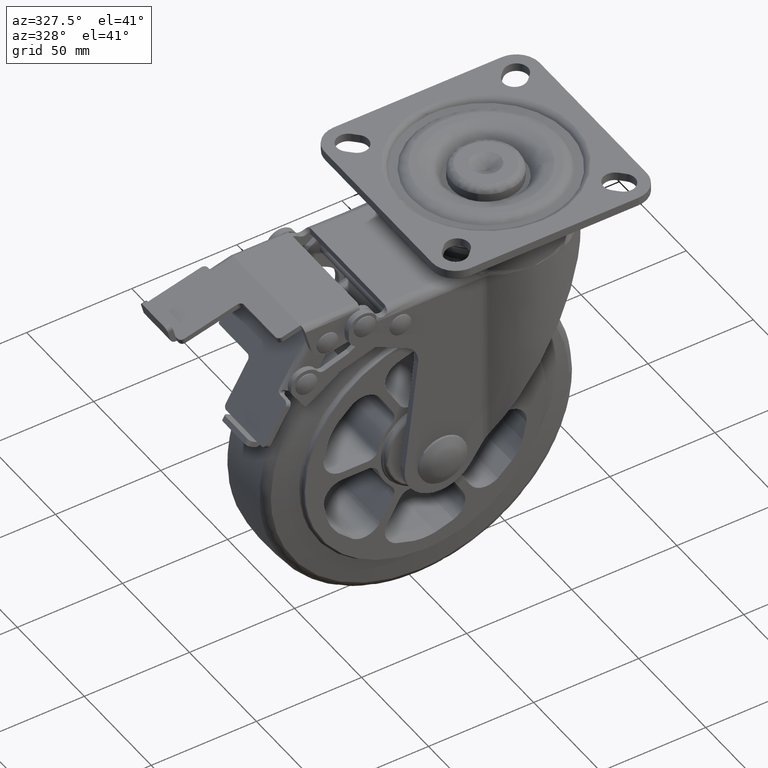
[diagram: clean part render]
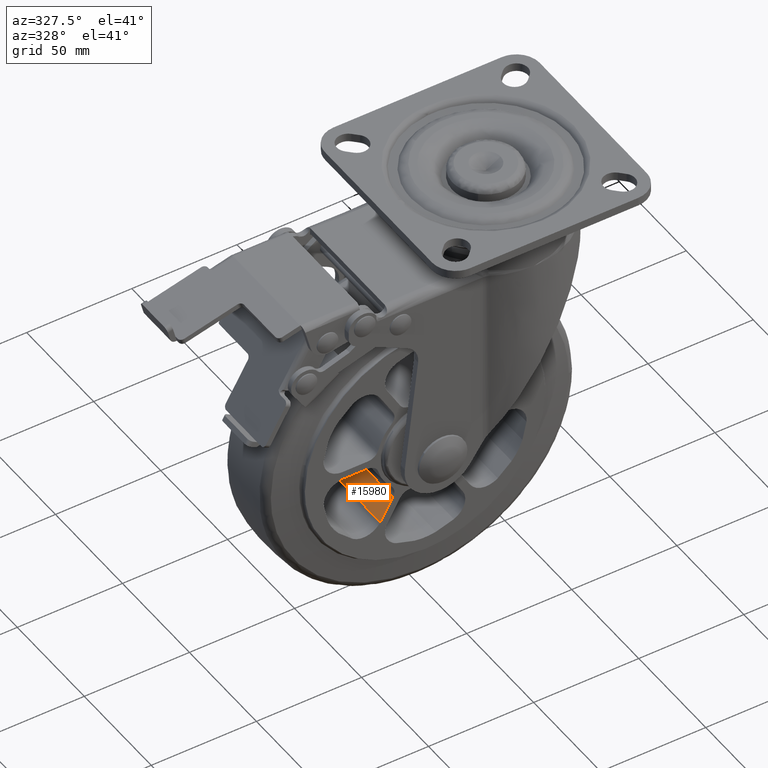
[diagram: same view with one face highlighted and labeled with its STEP entity id]
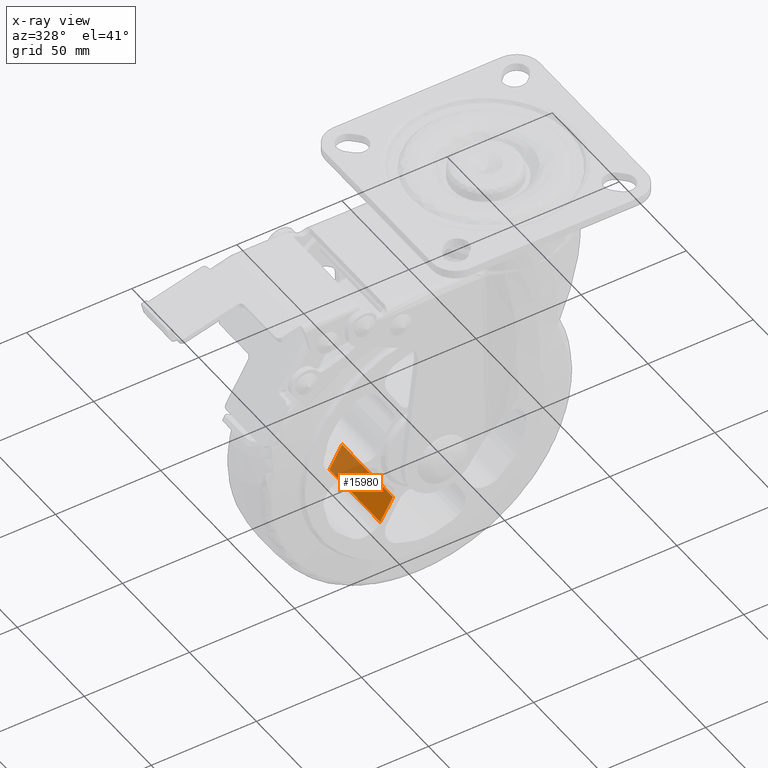
[diagram: x-ray of the same camera — body ghosted, the highlighted face saturated]
A machine part, auxiliary view. The second image highlights one B-rep face of the part: STEP entity #15980.
The next image is the same camera in x-ray: the body ghosted, the highlighted face saturated — about 34% of this face is hidden behind the body in this view.
In plain terms, the highlighted face is a freeform B-spline surface patch.
Its self-contained STEP definition (entity closure, byte-faithful):
#15918=CARTESIAN_POINT('',(-15.287491999999951,-19.0,-22.478713999999950));
#15919=VERTEX_POINT('',#15918);
#15932=CARTESIAN_POINT('',(-15.287491999999951,19.0,-22.478713999999950));
#15933=VERTEX_POINT('',#15932);
#15945=CARTESIAN_POINT('',(-15.287491999999951,19.0,-22.478713999999950));
#15946=CARTESIAN_POINT('',(-15.287491999999951,-19.0,-22.478713999999950));
#15947=QUASI_UNIFORM_CURVE('',1,(#15945,#15946),.UNSPECIFIED.,.F.,.U.);
#15948=EDGE_CURVE('',#15933,#15919,#15947,.T.);
#15953=CARTESIAN_POINT('',(-14.984004046555590,-20.898099926348621,-21.953057554357731));
#15954=CARTESIAN_POINT('',(-21.666814059784009,-20.898099926348621,-33.528021629827919));
#15955=CARTESIAN_POINT('',(-14.984004046555590,20.898100945588052,-21.953057554357731));
#15956=CARTESIAN_POINT('',(-21.666814059784009,20.898100945588052,-33.528021629827919));
#15957=B_SPLINE_SURFACE_WITH_KNOTS('',1,1,((#15953,#15955),(#15954,#15956)),.UNSPECIFIED.,.F.,.F.,.U.,(2,2),(2,2),(0.0,13.365617943863709),(0.0,41.796200871936669),.UNSPECIFIED.);
#15958=CARTESIAN_POINT('',(-21.363326432272849,-19.0,-33.002365748718347));
#15959=VERTEX_POINT('',#15958);
#15960=CARTESIAN_POINT('',(-21.363326432272849,-19.0,-33.002365748718347));
#15961=CARTESIAN_POINT('',(-15.287491999999951,-19.0,-22.478713999999950));
#15962=QUASI_UNIFORM_CURVE('',1,(#15960,#15961),.UNSPECIFIED.,.F.,.U.);
#15963=EDGE_CURVE('',#15959,#15919,#15962,.T.);
#15964=ORIENTED_EDGE('',*,*,#15963,.T.);
#15965=ORIENTED_EDGE('',*,*,#15948,.F.);
#15966=CARTESIAN_POINT('',(-21.363326432272849,19.0,-33.002365748718347));
#15967=VERTEX_POINT('',#15966);
#15968=CARTESIAN_POINT('',(-21.363326432272849,19.0,-33.002365748718347));
#15969=CARTESIAN_POINT('',(-15.287491999999951,19.0,-22.478713999999950));
#15970=QUASI_UNIFORM_CURVE('',1,(#15968,#15969),.UNSPECIFIED.,.F.,.U.);
#15971=EDGE_CURVE('',#15967,#15933,#15970,.T.);
#15972=ORIENTED_EDGE('',*,*,#15971,.F.);
#15973=CARTESIAN_POINT('',(-21.363326432272849,19.0,-33.002365748718347));
#15974=CARTESIAN_POINT('',(-21.363326432272849,-19.0,-33.002365748718347));
#15975=QUASI_UNIFORM_CURVE('',1,(#15973,#15974),.UNSPECIFIED.,.F.,.U.);
#15976=EDGE_CURVE('',#15967,#15959,#15975,.T.);
#15977=ORIENTED_EDGE('',*,*,#15976,.T.);
#15978=EDGE_LOOP('',(#15964,#15965,#15972,#15977));
#15979=FACE_OUTER_BOUND('',#15978,.T.);
#15980=ADVANCED_FACE('',(#15979),#15957,.F.);